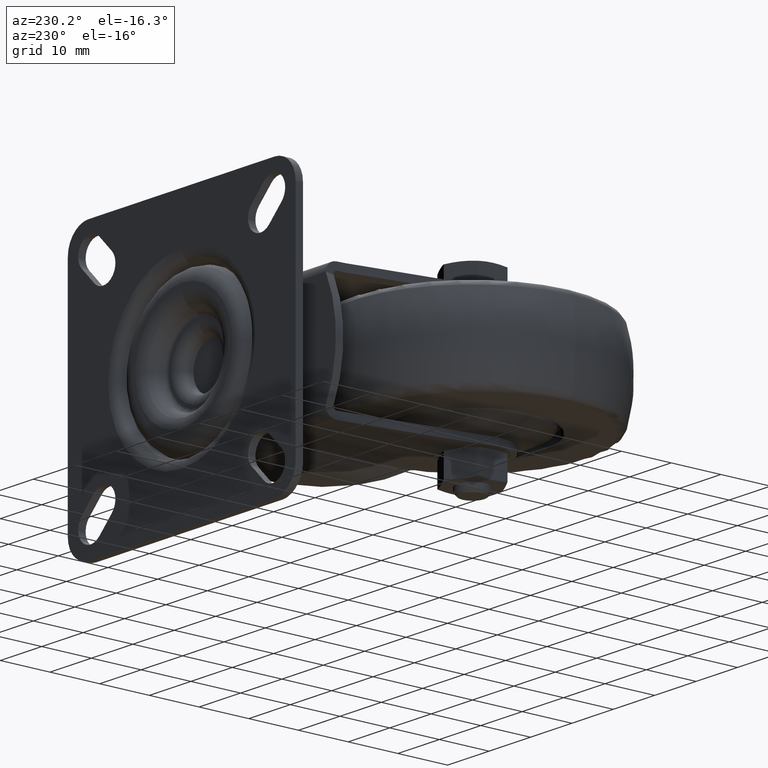
[diagram: clean part render]
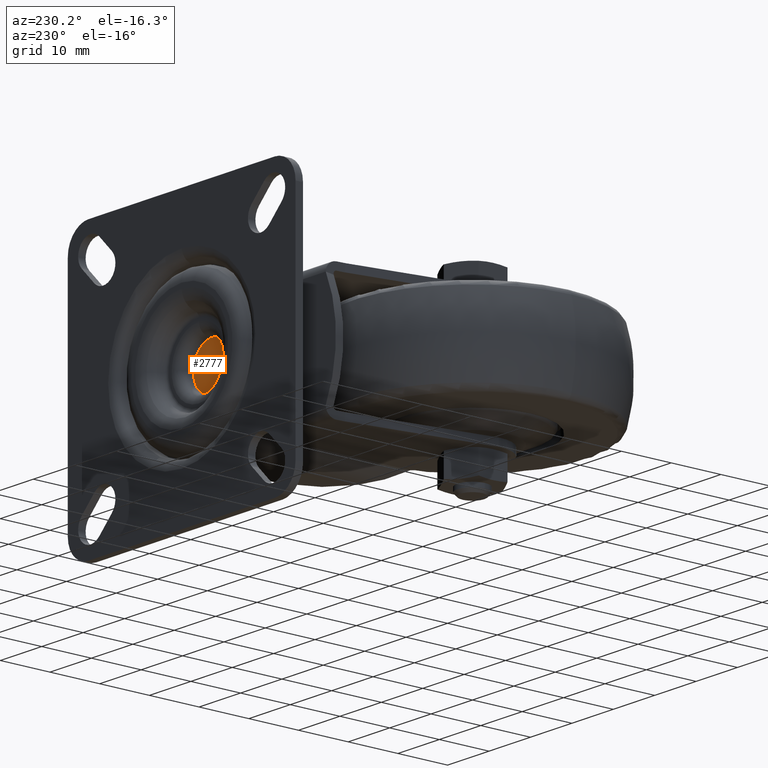
[diagram: same view with one face highlighted and labeled with its STEP entity id]
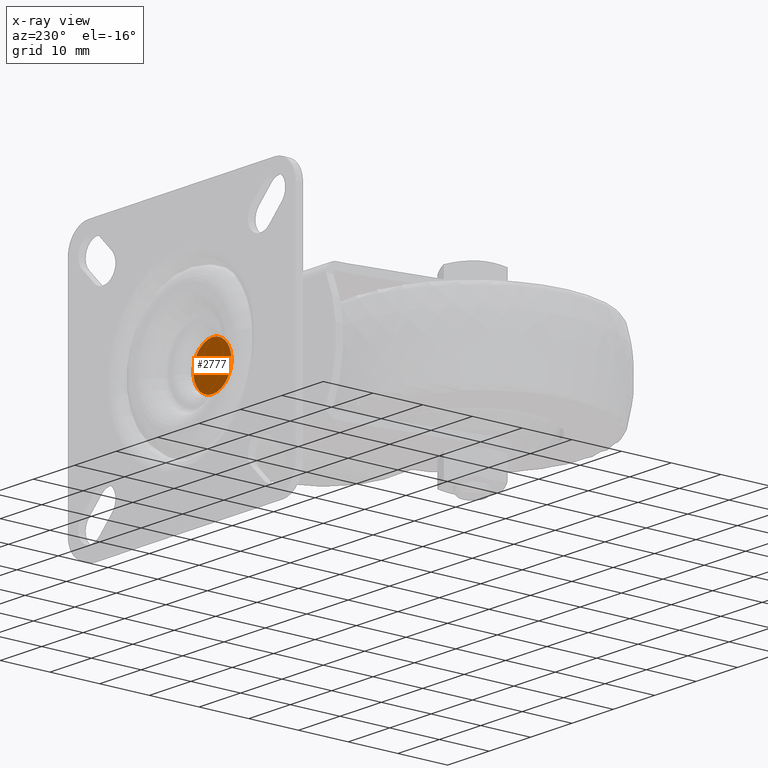
[diagram: x-ray of the same camera — body ghosted, the highlighted face saturated]
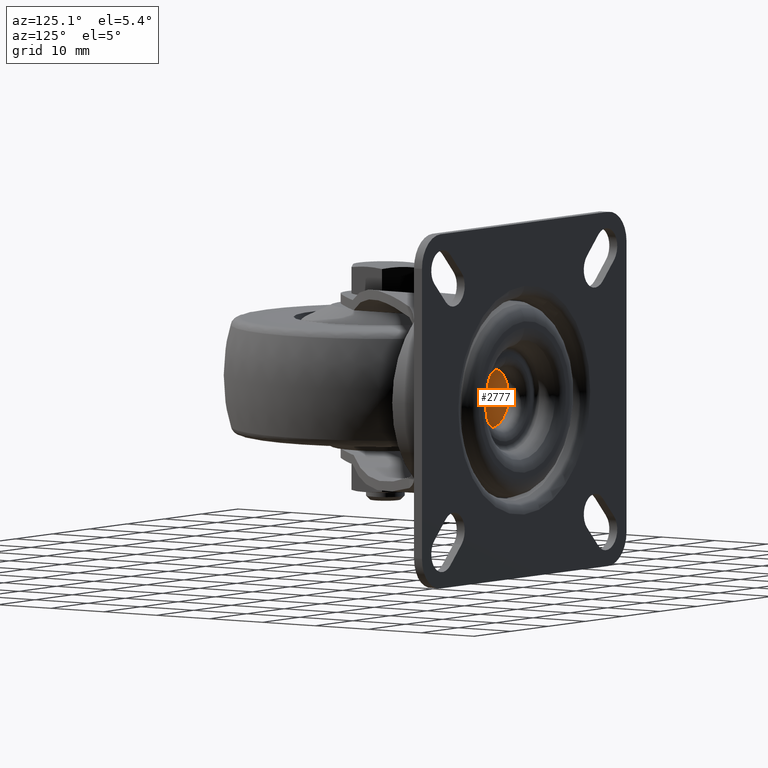
[diagram: same view with one face highlighted and labeled with its STEP entity id]
A machine part, auxiliary view. The second image highlights one B-rep face of the part: STEP entity #2777.
The next image is the same camera in x-ray: the body ghosted, the highlighted face saturated — about 0% of this face is hidden behind the body in this view.
A second angle (auxiliary view) of the same face is appended — the face is thin or edge-on in the first view.
In plain terms, the highlighted planar face has unit normal (0, -1, 0).
Its self-contained STEP definition (entity closure, byte-faithful):
#510=PLANE('',#3276);
#640=FACE_OUTER_BOUND('',#843,.T.);
#843=EDGE_LOOP('',(#2284));
#1048=CIRCLE('',#3277,4.6);
#1354=VERTEX_POINT('',#5153);
#1687=EDGE_CURVE('',#1354,#1354,#1048,.T.);
#2284=ORIENTED_EDGE('',*,*,#1687,.F.);
#2777=ADVANCED_FACE('',(#640),#510,.F.);
#3276=AXIS2_PLACEMENT_3D('',#5152,#3985,#3986);
#3277=AXIS2_PLACEMENT_3D('',#5154,#3987,#3988);
#3985=DIRECTION('center_axis',(0.,-1.,0.));
#3986=DIRECTION('ref_axis',(0.,0.,-1.));
#3987=DIRECTION('center_axis',(0.,-1.,0.));
#3988=DIRECTION('ref_axis',(0.,0.,-1.));
#5152=CARTESIAN_POINT('Origin',(21.,34.82,0.));
#5153=CARTESIAN_POINT('',(21.,34.82,4.6));
#5154=CARTESIAN_POINT('Origin',(21.,34.82,0.));